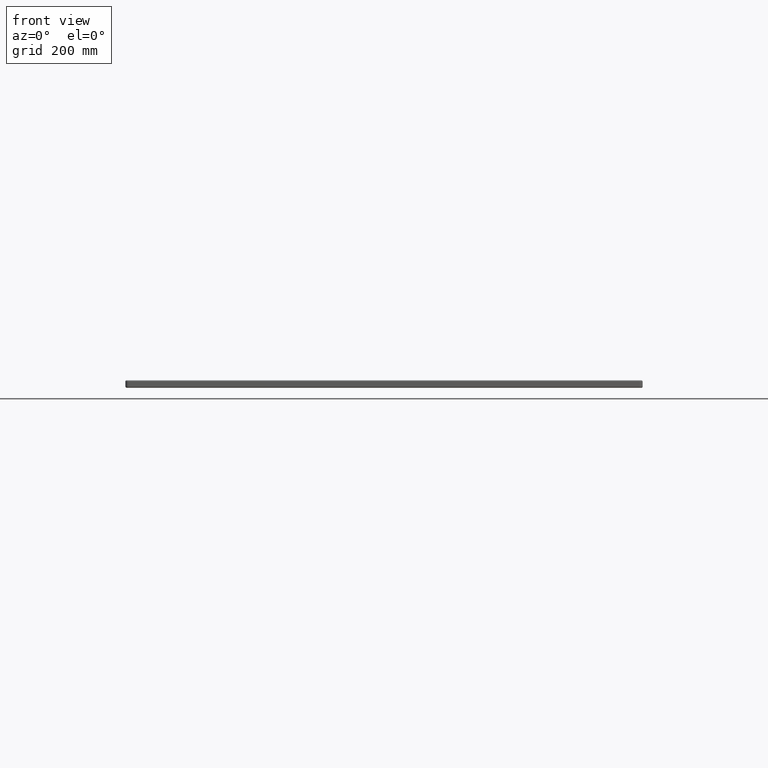
[diagram: clean part render]
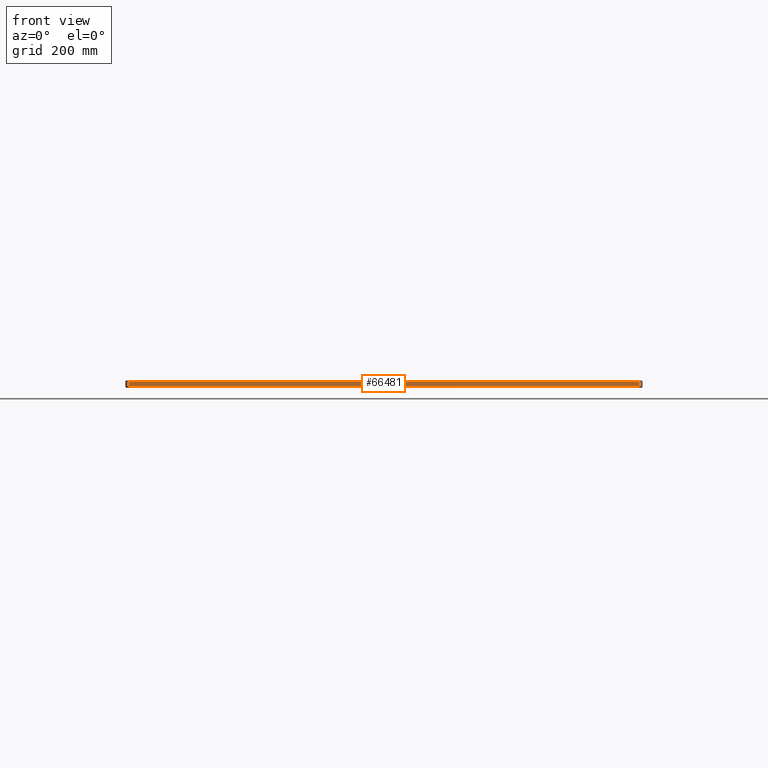
[diagram: same view with one face highlighted and labeled with its STEP entity id]
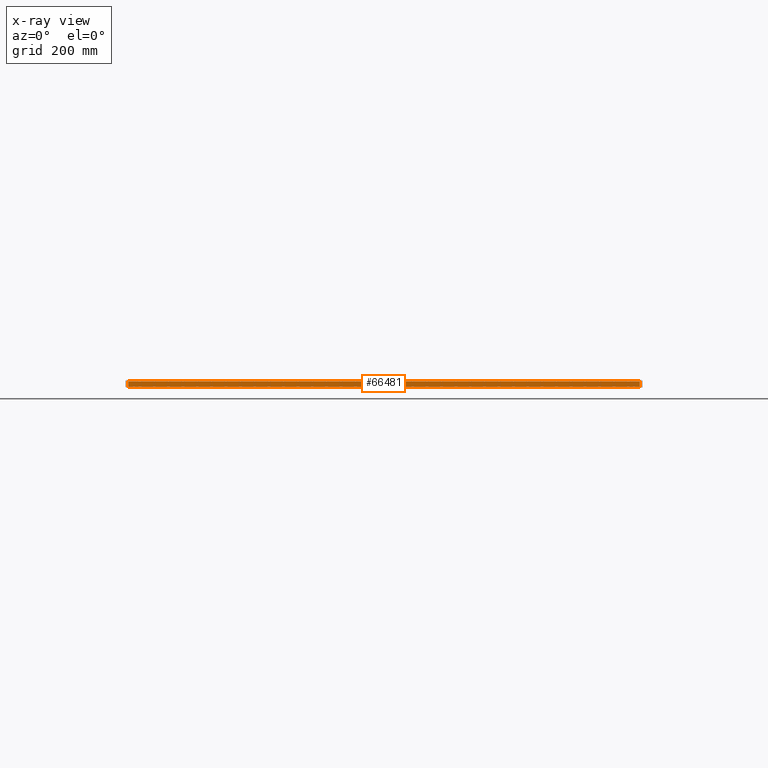
[diagram: x-ray of the same camera — body ghosted, the highlighted face saturated]
A machine part, front view. The second image highlights one B-rep face of the part: STEP entity #66481.
The next image is the same camera in x-ray: the body ghosted, the highlighted face saturated — about 0% of this face is hidden behind the body in this view.
In plain terms, the highlighted planar face has unit normal (0, -1, 0).
Its self-contained STEP definition (entity closure, byte-faithful):
#507 = LINE ( 'NONE', #26650, #3827 ) ;
#928 = CARTESIAN_POINT ( 'NONE',  ( 895.0000000000000000, 0.0000000000000000000, -13.00000000000000000 ) ) ;
#1351 = ORIENTED_EDGE ( 'NONE', *, *, #24921, .T. ) ;
#3827 = VECTOR ( 'NONE', #55228, 1000.000000000000000 ) ;
#3939 = VERTEX_POINT ( 'NONE', #87669 ) ;
#9025 = CARTESIAN_POINT ( 'NONE',  ( 0.0000000000000000000, 0.0000000000000000000, -11.00000000000000000 ) ) ;
#10154 = LINE ( 'NONE', #9025, #60225 ) ;
#11379 = EDGE_CURVE ( 'NONE', #64357, #3939, #10154, .T. ) ;
#21237 = ORIENTED_EDGE ( 'NONE', *, *, #58453, .T. ) ;
#24921 = EDGE_CURVE ( 'NONE', #32233, #77734, #82263, .T. ) ;
#26650 = CARTESIAN_POINT ( 'NONE',  ( 4.999999999999999100, 0.0000000000000000000, -13.00000000000000000 ) ) ;
#32233 = VERTEX_POINT ( 'NONE', #70243 ) ;
#33153 = CARTESIAN_POINT ( 'NONE',  ( 4.999999999999999100, 0.0000000000000000000, -11.00000000000000000 ) ) ;
#33550 = CARTESIAN_POINT ( 'NONE',  ( 0.0000000000000000000, 0.0000000000000000000, -13.00000000000000000 ) ) ;
#33808 = DIRECTION ( 'NONE',  ( 0.0000000000000000000, -0.0000000000000000000, -1.000000000000000000 ) ) ;
#33907 = EDGE_LOOP ( 'NONE', ( #90984, #60007, #21237, #1351 ) ) ;
#35776 = DIRECTION ( 'NONE',  ( -0.0000000000000000000, 0.0000000000000000000, 1.000000000000000000 ) ) ;
#37637 = VECTOR ( 'NONE', #35776, 1000.000000000000000 ) ;
#39887 = LINE ( 'NONE', #928, #37637 ) ;
#44636 = DIRECTION ( 'NONE',  ( -1.000000000000000000, -0.0000000000000000000, 0.0000000000000000000 ) ) ;
#47128 = AXIS2_PLACEMENT_3D ( 'NONE', #33550, #82972, #33808 ) ;
#51468 = CARTESIAN_POINT ( 'NONE',  ( 4.999999999999999100, 0.0000000000000000000, -2.000000000000000000 ) ) ;
#55228 = DIRECTION ( 'NONE',  ( -0.0000000000000000000, -0.0000000000000000000, -1.000000000000000000 ) ) ;
#58453 = EDGE_CURVE ( 'NONE', #3939, #32233, #39887, .T. ) ;
#60007 = ORIENTED_EDGE ( 'NONE', *, *, #11379, .T. ) ;
#60225 = VECTOR ( 'NONE', #87308, 1000.000000000000000 ) ;
#64357 = VERTEX_POINT ( 'NONE', #33153 ) ;
#66481 = ADVANCED_FACE ( 'NONE', ( #86463 ), #76114, .T. ) ;
#67799 = VECTOR ( 'NONE', #44636, 1000.000000000000000 ) ;
#70243 = CARTESIAN_POINT ( 'NONE',  ( 895.0000000000000000, 0.0000000000000000000, -2.000000000000000000 ) ) ;
#76114 = PLANE ( 'NONE',  #47128 ) ;
#77734 = VERTEX_POINT ( 'NONE', #82526 ) ;
#78073 = EDGE_CURVE ( 'NONE', #77734, #64357, #507, .T. ) ;
#82263 = LINE ( 'NONE', #51468, #67799 ) ;
#82526 = CARTESIAN_POINT ( 'NONE',  ( 4.999999999999999100, 0.0000000000000000000, -2.000000000000000000 ) ) ;
#82972 = DIRECTION ( 'NONE',  ( 0.0000000000000000000, -1.000000000000000000, 0.0000000000000000000 ) ) ;
#86463 = FACE_OUTER_BOUND ( 'NONE', #33907, .T. ) ;
#87308 = DIRECTION ( 'NONE',  ( 1.000000000000000000, 0.0000000000000000000, 0.0000000000000000000 ) ) ;
#87669 = CARTESIAN_POINT ( 'NONE',  ( 895.0000000000000000, 0.0000000000000000000, -11.00000000000000000 ) ) ;
#90984 = ORIENTED_EDGE ( 'NONE', *, *, #78073, .T. ) ;